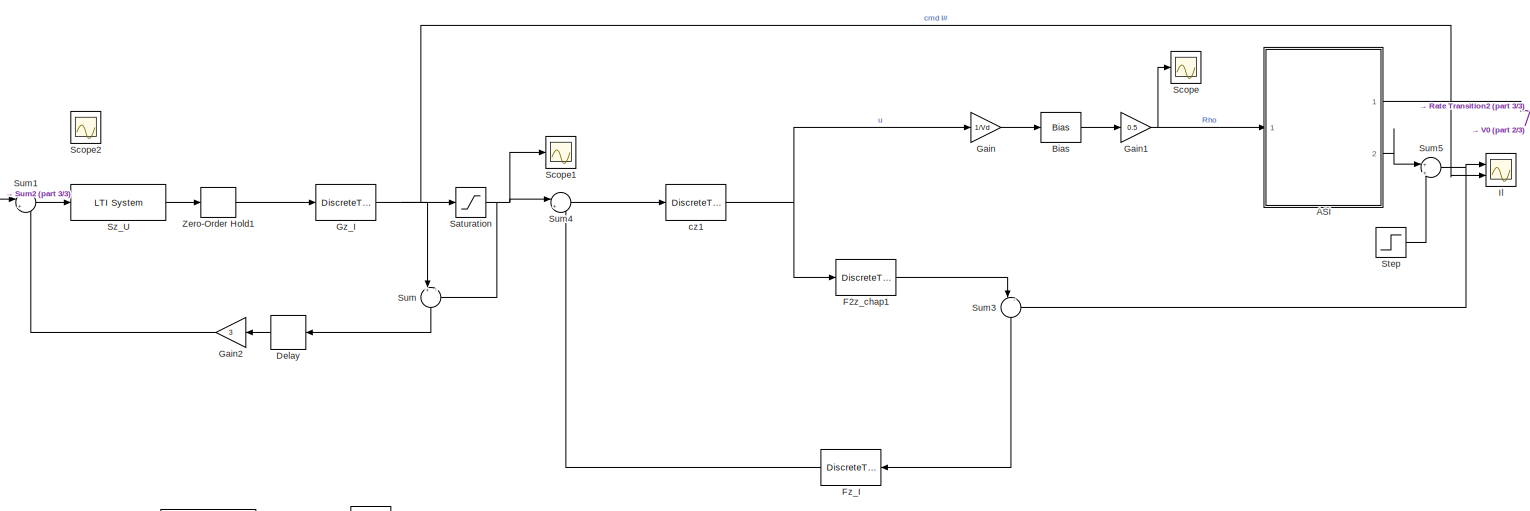
[diagram: root canvas - part 1/3, center side, full height]
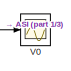
[diagram: root canvas - part 2/3, top right region]
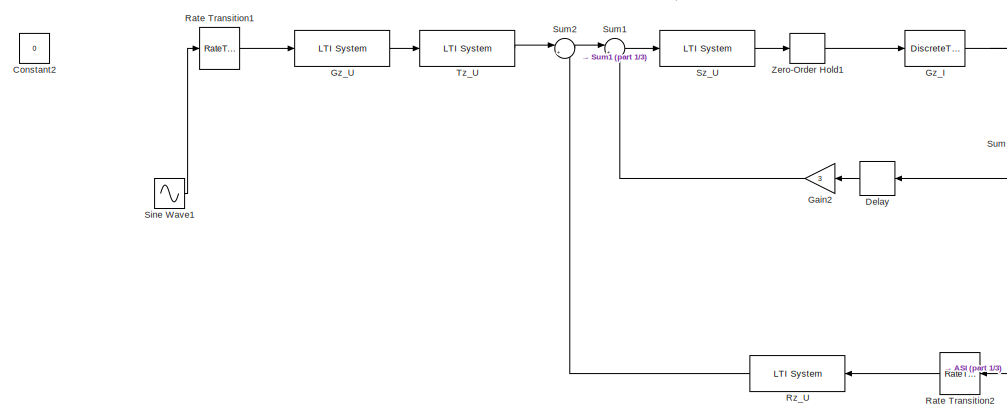
[diagram: root canvas - part 3/3, middle left region]
MODEL slx_7ea2b5378bb4
KIND model
CONFIG AbsTol = auto
CONFIG EnableMultiTasking = off
CONFIG FixedStep = auto
CONFIG MaxStep = auto
CONFIG MinStep = auto
CONFIG RelTol = 1e-3
CONFIG SampleTimeConstraint = Unconstrained
CONFIG SolverName = VariableStepAuto
CONFIG StartTime = 0.0
CONFIG StopTime = 0.04
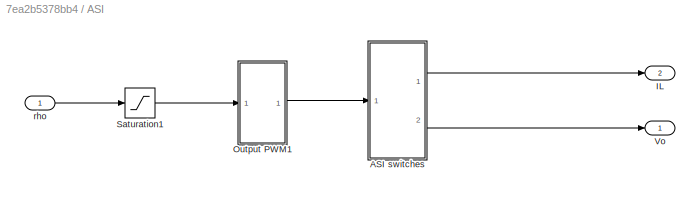
BLOCK [SubSystem] ASI
  Ports = [1, 2]
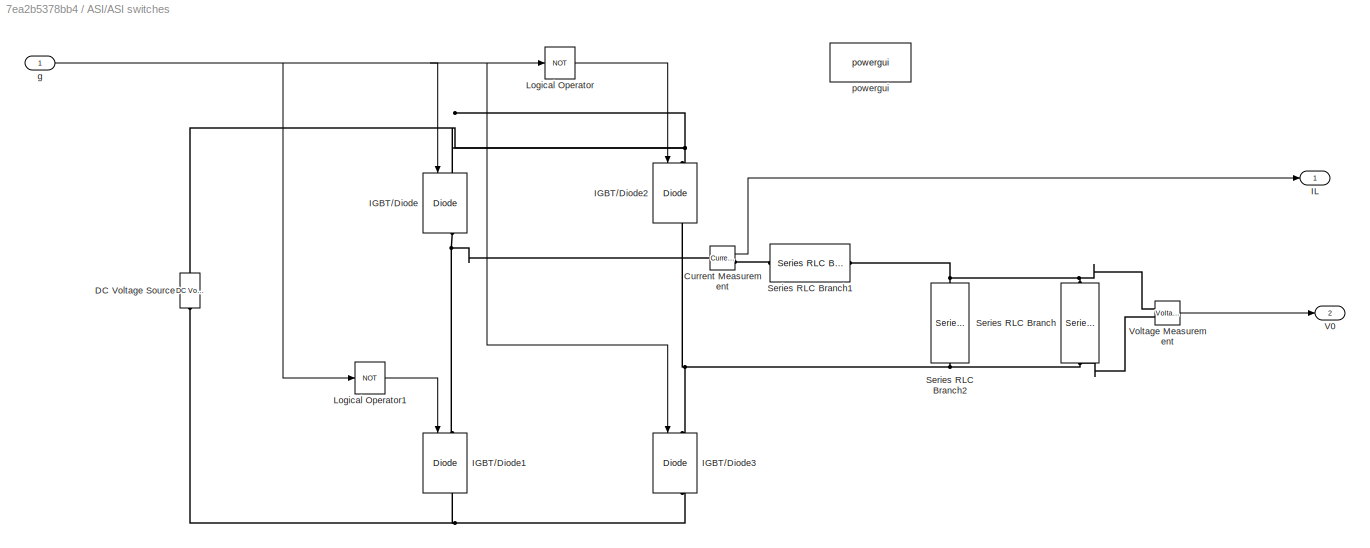
BLOCK [SubSystem] ASI/ASI switches
  Ports = [1, 2]
BLOCK [Reference] ASI/ASI switches/Current Measurement  REF=spsCurrentMeasurementLib/Current Measurement
  Ports = [0, 1, 0, 0, 0, 1, 1]
  SourceBlock = spsCurrentMeasurementLib/Current Measurement
  SourceType = Current Measurement
  UserDataPersistent = on
BLOCK [Reference] ASI/ASI switches/DC Voltage Source  REF=spsDCVoltageSourceLib/DC Voltage Source
  NameLocation = right
  Ports = [0, 0, 0, 0, 0, 1, 1]
  SourceBlock = spsDCVoltageSourceLib/DC Voltage Source
  SourceType = DC Voltage Source
BLOCK [Reference] ASI/ASI switches/IGBT//Diode  REF=spsIGBTDiodeLib/IGBT//Diode
  NameLocation = right
  Ports = [1, 1, 0, 0, 0, 1, 1]
  SourceBlock = spsIGBTDiodeLib/IGBT//Diode
  SourceType = IGBT/Diode
BLOCK [Reference] ASI/ASI switches/IGBT//Diode1  REF=spsIGBTDiodeLib/IGBT//Diode
  NameLocation = right
  Ports = [1, 1, 0, 0, 0, 1, 1]
  SourceBlock = spsIGBTDiodeLib/IGBT//Diode
  SourceType = IGBT/Diode
BLOCK [Reference] ASI/ASI switches/IGBT//Diode2  REF=spsIGBTDiodeLib/IGBT//Diode
  NameLocation = right
  Ports = [1, 1, 0, 0, 0, 1, 1]
  SourceBlock = spsIGBTDiodeLib/IGBT//Diode
  SourceType = IGBT/Diode
BLOCK [Reference] ASI/ASI switches/IGBT//Diode3  REF=spsIGBTDiodeLib/IGBT//Diode
  NameLocation = right
  Ports = [1, 1, 0, 0, 0, 1, 1]
  SourceBlock = spsIGBTDiodeLib/IGBT//Diode
  SourceType = IGBT/Diode
BLOCK [Outport] ASI/ASI switches/IL
BLOCK [Logic] ASI/ASI switches/Logical Operator
  AllPortsSameDT = off
  Operator = NOT
  OutDataTypeStr = boolean
  Ports = [1, 1]
BLOCK [Logic] ASI/ASI switches/Logical Operator1
  AllPortsSameDT = off
  Operator = NOT
  OutDataTypeStr = boolean
  Ports = [1, 1]
BLOCK [Reference] ASI/ASI switches/Series RLC Branch  REF=spsSeriesRLCBranchLib/Series RLC Branch
  NameLocation = left
  Ports = [0, 0, 0, 0, 0, 1, 1]
  SourceBlock = spsSeriesRLCBranchLib/Series RLC Branch
  SourceType = Series RLC Branch
BLOCK [Reference] ASI/ASI switches/Series RLC Branch1  REF=spsSeriesRLCBranchLib/Series RLC Branch
  Ports = [0, 0, 0, 0, 0, 1, 1]
  SourceBlock = spsSeriesRLCBranchLib/Series RLC Branch
  SourceType = Series RLC Branch
BLOCK [Reference] ASI/ASI switches/Series RLC Branch2  REF=spsSeriesRLCBranchLib/Series RLC Branch
  NameLocation = left
  Ports = [0, 0, 0, 0, 0, 1, 1]
  SourceBlock = spsSeriesRLCBranchLib/Series RLC Branch
  SourceType = Series RLC Branch
BLOCK [Outport] ASI/ASI switches/V0
  Port = 2
BLOCK [Reference] ASI/ASI switches/Voltage Measurement  REF=spsVoltageMeasurementLib/Voltage Measurement
  Ports = [0, 1, 0, 0, 0, 2]
  SourceBlock = spsVoltageMeasurementLib/Voltage Measurement
  SourceType = Voltage Measurement
  UserDataPersistent = on
BLOCK [Inport] ASI/ASI switches/g
BLOCK [Reference] ASI/ASI switches/powergui  REF=spspowerguiLib/powergui
  Ports = []
  Priority = 1
  SourceBlock = spspowerguiLib/powergui
  SourceType = PSB option menu block
BLOCK [Outport] ASI/IL
  Port = 2
  VectorParamsAs1DForOutWhenUnconnected = off
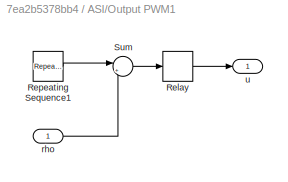
BLOCK [SubSystem] ASI/Output PWM1
  Ports = [1, 1]
BLOCK [Relay] ASI/Output PWM1/Relay
  OffOutputValue = 1
  OffSwitchValue = 0
  OnOutputValue = 0
  OnSwitchValue = 0
BLOCK [Reference] ASI/Output PWM1/Repeating Sequence1  REF=simulink/Sources/Repeating
Sequence
  Ports = [0, 1]
  SourceBlock = simulink/Sources/Repeating\nSequence
  SourceType = Repeating table
BLOCK [Sum] ASI/Output PWM1/Sum
  Inputs = |+-
  Ports = [2, 1]
  SaturateOnIntegerOverflow = on
BLOCK [Inport] ASI/Output PWM1/rho
BLOCK [Outport] ASI/Output PWM1/u
  VectorParamsAs1DForOutWhenUnconnected = off
BLOCK [Saturate] ASI/Saturation1
  LowerLimit = 0
  UpperLimit = 1
BLOCK [Outport] ASI/Vo
  VectorParamsAs1DForOutWhenUnconnected = off
BLOCK [Inport] ASI/rho
BLOCK [Bias] Bias
  Bias = 1
  SaturateOnIntegerOverflow = off
BLOCK [Constant] Constant2
  SampleTime = Te
  Value = 0
BLOCK [Delay] Delay
  DelayLength = 1
  InputPortMap = u0
  Ports = [1, 1]
BLOCK [DiscreteTransferFcn] F2z_chap1
  Denominator = Az_I
  InputPortMap = u0
  Numerator = Bz_I
  Ports = [1, 1]
  SampleTime = Te
BLOCK [DiscreteTransferFcn] Fz_I
  Denominator = Fz_I.Denominator{1}
  InputPortMap = u0
  NameLocation = top
  Numerator = Fz_I.Numerator{1}
  Ports = [1, 1]
  SampleTime = Te
BLOCK [Gain] Gain
  Gain = 1/Vd
BLOCK [Gain] Gain1
  Gain = 0.5
BLOCK [Gain] Gain2
  Gain = 3
  NameLocation = top
BLOCK [DiscreteTransferFcn] Gz_I
  Denominator = Gz_I.Denominator{1}
  InputPortMap = u0
  Numerator = Gz_I.Numerator{1}
  Ports = [1, 1]
  SampleTime = Te
BLOCK [Reference] Gz_U  REF=cstblocks/LTI System
  Ports = [1, 1]
  SourceBlock = cstblocks/LTI System
  SourceType = LTI Block
BLOCK [Scope] Il
  Floating = off
  NumInputPorts = 2
  Ports = [2]
  ScopeSpecificationString = Simulink.scopes.TimeScopeBlockCfg('CurrentConfiguration', extmgr.ConfigurationSet(extmgr.Configuration('Core','General UI',true),extmgr.Configuration('Core','Source UI',true),extmgr.Configuration('Sources','WiredSimulink',true,'DataLoggingVariableName','ScopeData1'),extmgr.Configuration('Visuals','Time Domain',true,'SerializedDisplays',{struct('MinYLimReal','-31.5737','MaxYLimReal','69.35676','YLa...<+1764ch>
BLOCK [RateTransition] Rate Transition1
  OutPortSampleTime = Te
BLOCK [RateTransition] Rate Transition2
  OutPortSampleTime = Te
BLOCK [Reference] Rz_U  REF=cstblocks/LTI System
  NameLocation = top
  Ports = [1, 1]
  SourceBlock = cstblocks/LTI System
  SourceType = LTI Block
BLOCK [Saturate] Saturation
  LowerLimit = -25
  UpperLimit = 25
BLOCK [Scope] Scope
  Floating = off
  NumInputPorts = 1
  Ports = [1]
  ScopeSpecificationString = Simulink.scopes.TimeScopeBlockCfg('CurrentConfiguration', extmgr.ConfigurationSet(extmgr.Configuration('Core','General UI',true),extmgr.Configuration('Core','Source UI',true),extmgr.Configuration('Sources','WiredSimulink',true,'DataLoggingVariableName','ScopeData1'),extmgr.Configuration('Visuals','Time Domain',true,'SerializedDisplays',{struct('MinYLimReal','-0.10967','MaxYLimReal','1.06875','YLab...<+1362ch>
BLOCK [Scope] Scope1
  Floating = off
  NumInputPorts = 1
  Ports = [1]
  ScopeSpecificationString = Simulink.scopes.TimeScopeBlockCfg('CurrentConfiguration', extmgr.ConfigurationSet(extmgr.Configuration('Core','General UI',true),extmgr.Configuration('Core','Source UI',true),extmgr.Configuration('Sources','WiredSimulink',true,'DataLoggingVariableName','ScopeData1'),extmgr.Configuration('Visuals','Time Domain',true,'SerializedDisplays',{struct('MinYLimReal','-19.76652','MaxYLimReal','29.97406','YL...<+1375ch>
BLOCK [Scope] Scope2
  Floating = off
  NumInputPorts = 1
  Ports = [1]
  ScopeSpecificationString = Simulink.scopes.TimeScopeBlockCfg('CurrentConfiguration', extmgr.ConfigurationSet(extmgr.Configuration('Core','General UI',true),extmgr.Configuration('Core','Source UI',true),extmgr.Configuration('Sources','WiredSimulink',true,'DataLoggingVariableName','ScopeData2'),extmgr.Configuration('Visuals','Time Domain',true,'SerializedDisplays',{struct('MinYLimReal','-17591972831429954734833334983685557122...<+2771ch>
BLOCK [Sin] Sine Wave1
  Amplitude = 230
  Frequency = 314
  Ports = [0, 1]
  SampleTime = 0
BLOCK [Step] Step
  After = 0
  SampleTime = 0
  Time = 0.01
BLOCK [Sum] Sum
  Inputs = +|-
  NameLocation = left
  Ports = [2, 1]
BLOCK [Sum] Sum1
  Inputs = |+-
  Ports = [2, 1]
BLOCK [Sum] Sum2
  Inputs = |+-
  Ports = [2, 1]
BLOCK [Sum] Sum3
  Inputs = |-+
  NameLocation = left
  Ports = [2, 1]
BLOCK [Sum] Sum4
  Inputs = |+-
  Ports = [2, 1]
BLOCK [Sum] Sum5
  Inputs = +|+
  Ports = [2, 1]
BLOCK [Reference] Sz_U  REF=cstblocks/LTI System
  Ports = [1, 1]
  SourceBlock = cstblocks/LTI System
  SourceType = LTI Block
BLOCK [Reference] Tz_U  REF=cstblocks/LTI System
  Ports = [1, 1]
  SourceBlock = cstblocks/LTI System
  SourceType = LTI Block
BLOCK [Scope] V0
  Floating = off
  NumInputPorts = 1
  Ports = [1]
  ScopeSpecificationString = Simulink.scopes.TimeScopeBlockCfg('CurrentConfiguration', extmgr.ConfigurationSet(extmgr.Configuration('Core','General UI',true),extmgr.Configuration('Core','Source UI',true),extmgr.Configuration('Sources','WiredSimulink',true),extmgr.Configuration('Visuals','Time Domain',true,'SerializedDisplays',{struct('MinYLimReal','-253.71745','MaxYLimReal','252.32807','YLabelReal','','MinYLimMag',' 0.00000',...<+1435ch>
BLOCK [ZeroOrderHold] Zero-Order Hold1
  SampleTime = Te
BLOCK [DiscreteTransferFcn] cz1
  Denominator = Cz_I.Denominator{1}
  InputPortMap = u0
  Numerator = Cz_I.Numerator{1}
  Ports = [1, 1]
  SampleTime = Te
LINE ASI/ASI switches/Current Measurement:1 -> ASI/ASI switches/IL:1
LINE ASI/ASI switches/Logical Operator1:1 -> ASI/ASI switches/IGBT//Diode1:1
LINE ASI/ASI switches/Logical Operator:1 -> ASI/ASI switches/IGBT//Diode2:1
LINE ASI/ASI switches/Voltage Measurement:1 -> ASI/ASI switches/V0:1
NET ASI/ASI switches/g:1 -> ASI/ASI switches/IGBT//Diode3:1, ASI/ASI switches/IGBT//Diode:1, ASI/ASI switches/Logical Operator1:1, ASI/ASI switches/Logical Operator:1
LINE ASI/ASI switches:1 -> ASI/IL:1
LINE ASI/ASI switches:2 -> ASI/Vo:1
LINE ASI/Output PWM1/Relay:1 -> ASI/Output PWM1/u:1
LINE ASI/Output PWM1/Repeating Sequence1:1 -> ASI/Output PWM1/Sum:1
LINE ASI/Output PWM1/Sum:1 -> ASI/Output PWM1/Relay:1
LINE ASI/Output PWM1/rho:1 -> ASI/Output PWM1/Sum:2
LINE ASI/Output PWM1:1 -> ASI/ASI switches:1
LINE ASI/Saturation1:1 -> ASI/Output PWM1:1
LINE ASI/rho:1 -> ASI/Saturation1:1
NET ASI:1 -> Rate Transition2:1, V0:1
LINE ASI:2 -> Sum5:1
LINE Bias:1 -> Gain1:1
LINE Delay:1 -> Gain2:1
LINE F2z_chap1:1 -> Sum3:1
LINE Fz_I:1 -> Sum4:2
NET Gain1:1 -> ASI:1, Scope:1
LINE Gain2:1 -> Sum1:2
LINE Gain:1 -> Bias:1
NET Gz_I:1 -> Il:2, Saturation:1, Sum:1
LINE Gz_U:1 -> Tz_U:1
LINE Rate Transition1:1 -> Gz_U:1
LINE Rate Transition2:1 -> Rz_U:1
LINE Rz_U:1 -> Sum2:2
NET Saturation:1 -> Scope1:1, Sum4:1, Sum:2
LINE Sine Wave1:1 -> Rate Transition1:1
LINE Step:1 -> Sum5:2
LINE Sum1:1 -> Sz_U:1
LINE Sum2:1 -> Sum1:1
LINE Sum3:1 -> Fz_I:1
LINE Sum4:1 -> cz1:1
NET Sum5:1 -> Il:1, Sum3:2
LINE Sum:1 -> Delay:1
LINE Sz_U:1 -> Zero-Order Hold1:1
LINE Tz_U:1 -> Sum2:1
LINE Zero-Order Hold1:1 -> Gz_I:1
NET cz1:1 -> F2z_chap1:1, Gain:1
PNET net1: ASI/ASI switches/Current Measurement:LConn1 -- ASI/ASI switches/IGBT//Diode1:LConn1 -- ASI/ASI switches/IGBT//Diode:RConn1
PLINE ASI/ASI switches/Current Measurement:RConn1 -- ASI/ASI switches/Series RLC Branch1:LConn1
PNET net2: ASI/ASI switches/DC Voltage Source:LConn1 -- ASI/ASI switches/IGBT//Diode1:RConn1 -- ASI/ASI switches/IGBT//Diode3:RConn1
PNET net3: ASI/ASI switches/DC Voltage Source:RConn1 -- ASI/ASI switches/IGBT//Diode2:LConn1 -- ASI/ASI switches/IGBT//Diode:LConn1
PNET net4: ASI/ASI switches/IGBT//Diode2:RConn1 -- ASI/ASI switches/IGBT//Diode3:LConn1 -- ASI/ASI switches/Series RLC Branch2:RConn1 -- ASI/ASI switches/Series RLC Branch:RConn1 -- ASI/ASI switches/Voltage Measurement:LConn2
PNET net5: ASI/ASI switches/Series RLC Branch1:RConn1 -- ASI/ASI switches/Series RLC Branch2:LConn1 -- ASI/ASI switches/Series RLC Branch:LConn1 -- ASI/ASI switches/Voltage Measurement:LConn1
note: NET lines group one-source signal fan-out (src -> all destinations, sorted); 1:1 wires keep LINE; PNET lines group multi-terminal physical nets as a canonical sorted terminal list (undirected conserving connections); 2-terminal nets keep the pairwise PLINE form
